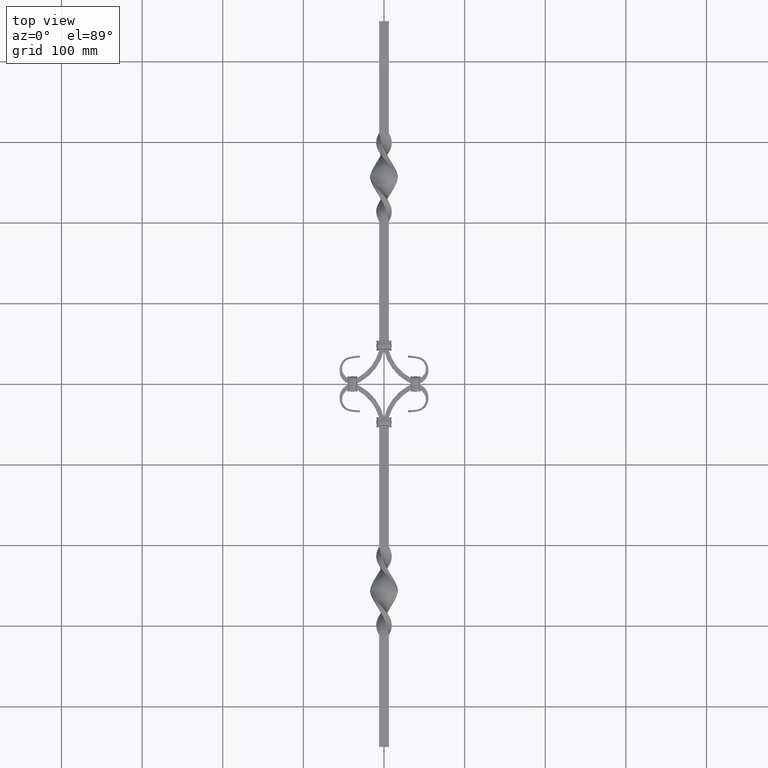
[diagram: clean part render]
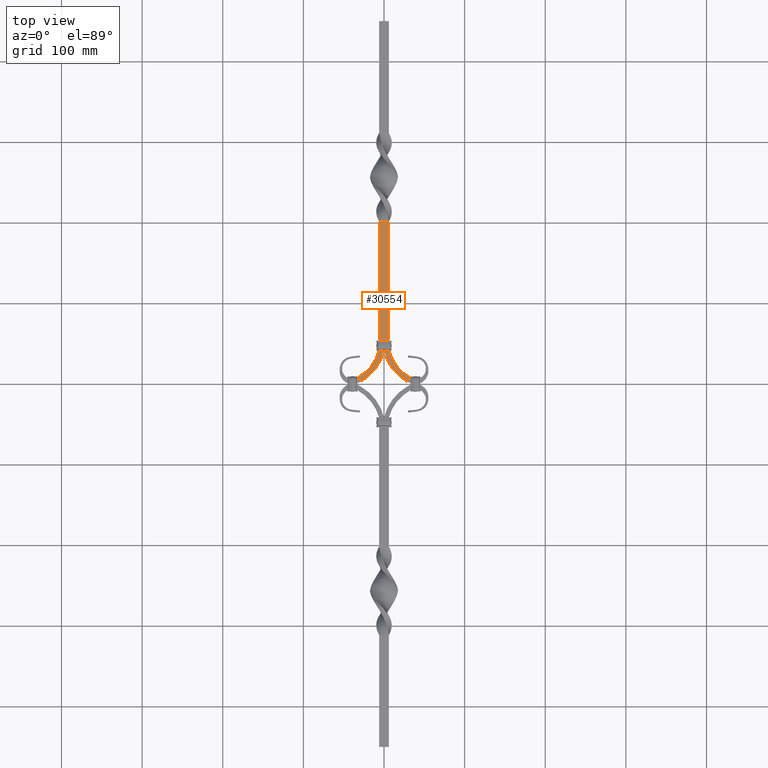
[diagram: same view with one face highlighted and labeled with its STEP entity id]
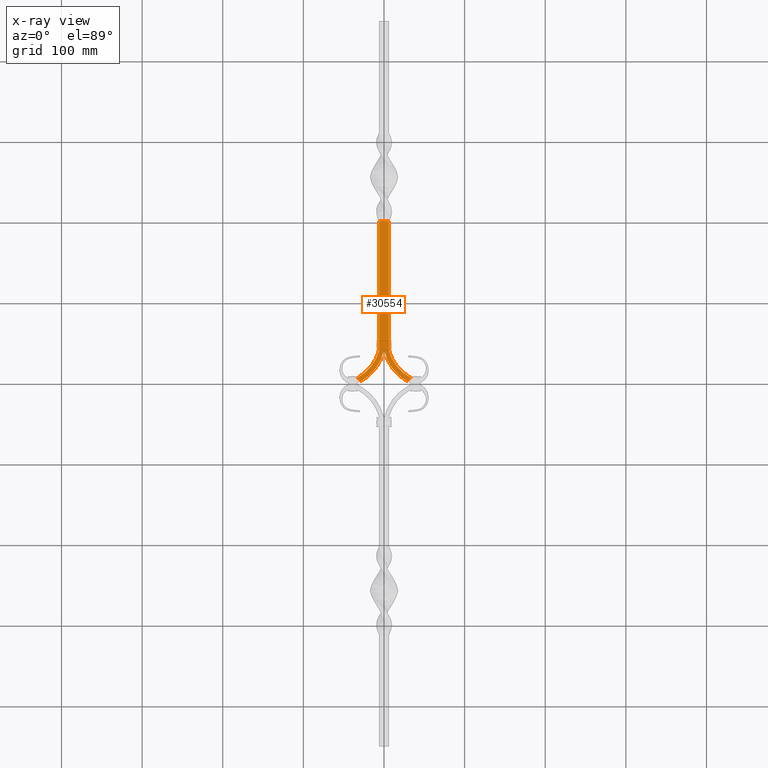
[diagram: x-ray of the same camera — body ghosted, the highlighted face saturated]
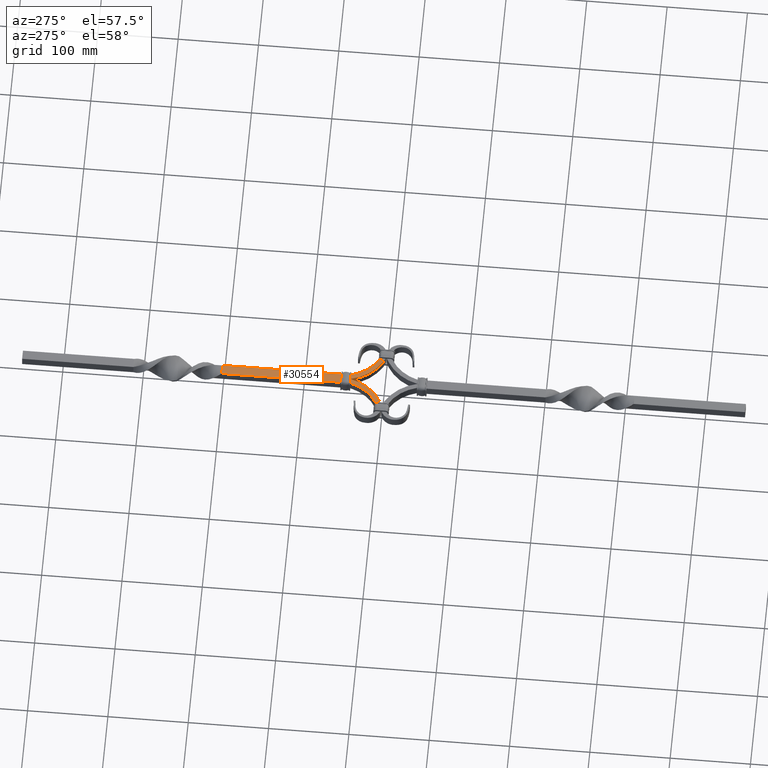
[diagram: same view with one face highlighted and labeled with its STEP entity id]
A machine part, top view. The second image highlights one B-rep face of the part: STEP entity #30554.
The next image is the same camera in x-ray: the body ghosted, the highlighted face saturated — about 0% of this face is hidden behind the body in this view.
A second angle (auxiliary view) of the same face is appended — the face is thin or edge-on in the first view.
In plain terms, the highlighted planar face has unit normal (-0, -0, -1).
Its self-contained STEP definition (entity closure, byte-faithful):
#179 = VERTEX_POINT ( 'NONE', #27076 ) ;
#478 = DIRECTION ( 'NONE',  ( -0.000000000000000000, -0.000000000000000000, -1.000000000000000000 ) ) ;
#809 = VERTEX_POINT ( 'NONE', #1776 ) ;
#1152 = CARTESIAN_POINT ( 'NONE',  ( -5.999999833333292010, 41.50000000000000000, 6.000000000000043521 ) ) ;
#1306 = VECTOR ( 'NONE', #19699, 1000.000000000000000 ) ;
#1404 = CARTESIAN_POINT ( 'NONE',  ( -32.78314722825023608, 7.582875072314094744, 6.000000000000043521 ) ) ;
#1441 = B_SPLINE_CURVE_WITH_KNOTS ( 'NONE', 3,
 ( #17561, #20033, #2916, #5411 ),
 .UNSPECIFIED., .F., .F.,
 ( 4, 4 ),
 ( 0.000000000000000000, 1.000000000000000000 ),
 .UNSPECIFIED. ) ;
#1625 = ORIENTED_EDGE ( 'NONE', *, *, #3759, .F. ) ;
#1776 = CARTESIAN_POINT ( 'NONE',  ( -28.66998436362908365, 3.283527302116791446, 5.999999917361111379 ) ) ;
#1881 = DIRECTION ( 'NONE',  ( -1.000000000000000000, -8.591735456650550102E-18, 6.910682532853900011E-15 ) ) ;
#2353 = DIRECTION ( 'NONE',  ( 0.000000000000000000, 0.000000000000000000, 1.000000000000000000 ) ) ;
#2505 = EDGE_CURVE ( 'NONE', #18834, #3188, #9484, .T. ) ;
#2864 = B_SPLINE_CURVE_WITH_KNOTS ( 'NONE', 3,
 ( #11423, #9062, #28710, #18811 ),
 .UNSPECIFIED., .F., .F.,
 ( 4, 4 ),
 ( 0.4958333472222151705, 0.5041666527777778350 ),
 .UNSPECIFIED. ) ;
#2916 = CARTESIAN_POINT ( 'NONE',  ( -5.999999999999958256, 94.83333333333338544, 6.000000000000023981 ) ) ;
#3121 = LINE ( 'NONE', #1404, #28432 ) ;
#3188 = VERTEX_POINT ( 'NONE', #10870 ) ;
#3759 = EDGE_CURVE ( 'NONE', #179, #809, #12509, .T. ) ;
#4164 = FACE_OUTER_BOUND ( 'NONE', #18968, .T. ) ;
#5142 = VERTEX_POINT ( 'NONE', #1152 ) ;
#5411 = CARTESIAN_POINT ( 'NONE',  ( -5.999999833333292010, 41.50000000000000000, 6.000000000000043521 ) ) ;
#5599 = CARTESIAN_POINT ( 'NONE',  ( 0.04999983333337934543, 41.50000000000000000, 5.999999917361111379 ) ) ;
#7958 = DIRECTION ( 'NONE',  ( -0.9715685761218874061, -0.2367583195845254507, 0.000000000000000000 ) ) ;
#8377 = VECTOR ( 'NONE', #22094, 999.9999999999998863 ) ;
#9062 = CARTESIAN_POINT ( 'NONE',  ( -0.01666661111112539492, 41.50000000000000000, 6.000000000000001776 ) ) ;
#9123 = AXIS2_PLACEMENT_3D ( 'NONE', #22419, #14886, #7958 ) ;
#9484 = CIRCLE ( 'NONE', #12220, 54.99999999999999289 ) ;
#9969 = ORIENTED_EDGE ( 'NONE', *, *, #14269, .T. ) ;
#10804 = EDGE_CURVE ( 'NONE', #5142, #25402, #15993, .T. ) ;
#10870 = CARTESIAN_POINT ( 'NONE',  ( 32.78314722825024319, 7.582875072314088527, 6.000000000000043521 ) ) ;
#11002 = DIRECTION ( 'NONE',  ( 0.6912878764069255721, -0.7225794571760277840, -1.388889616061434553E-08 ) ) ;
#11205 = LINE ( 'NONE', #24954, #1306 ) ;
#11423 = CARTESIAN_POINT ( 'NONE',  ( -0.04999983333337934543, 41.50000000000000000, 5.999999917361111379 ) ) ;
#12008 = DIRECTION ( 'NONE',  ( -0.9651857602519690049, -0.2615653803675643818, 0.000000000000000000 ) ) ;
#12220 = AXIS2_PLACEMENT_3D ( 'NONE', #21954, #2353, #12008 ) ;
#12509 = CIRCLE ( 'NONE', #19806, 60.76278943633926133 ) ;
#13493 = ORIENTED_EDGE ( 'NONE', *, *, #27003, .T. ) ;
#13779 = EDGE_CURVE ( 'NONE', #24350, #18834, #25818, .T. ) ;
#14269 = EDGE_CURVE ( 'NONE', #24350, #17121, #11205, .T. ) ;
#14741 = ORIENTED_EDGE ( 'NONE', *, *, #23830, .T. ) ;
#14886 = DIRECTION ( 'NONE',  ( 0.000000000000000000, 0.000000000000000000, 1.000000000000000000 ) ) ;
#15251 = ORIENTED_EDGE ( 'NONE', *, *, #30659, .F. ) ;
#15312 = ORIENTED_EDGE ( 'NONE', *, *, #19515, .T. ) ;
#15993 = CIRCLE ( 'NONE', #31770, 54.99999999999999289 ) ;
#16423 = PLANE ( 'NONE',  #28560 ) ;
#16781 = ORIENTED_EDGE ( 'NONE', *, *, #2505, .F. ) ;
#17121 = VERTEX_POINT ( 'NONE', #26841 ) ;
#17220 = ORIENTED_EDGE ( 'NONE', *, *, #19622, .T. ) ;
#17246 = DIRECTION ( 'NONE',  ( -0.000000000000000000, -0.000000000000000000, -1.000000000000000000 ) ) ;
#17541 = DIRECTION ( 'NONE',  ( 0.9651857602519690049, -0.2615653803675643818, 0.000000000000000000 ) ) ;
#17561 = CARTESIAN_POINT ( 'NONE',  ( -6.000229014795413818, 201.4998782681933278, 5.999999914508149068 ) ) ;
#17632 = CARTESIAN_POINT ( 'NONE',  ( 6.000000000000040856, 148.1666666666667993, 6.000000000000002665 ) ) ;
#18811 = CARTESIAN_POINT ( 'NONE',  ( 0.04999983333337934543, 41.50000000000000000, 5.999999917361111379 ) ) ;
#18834 = VERTEX_POINT ( 'NONE', #27935 ) ;
#18968 = EDGE_LOOP ( 'NONE', ( #17220, #27084, #14741, #1625, #13493, #15312, #15251, #16781, #29075, #9969 ) ) ;
#19059 = CARTESIAN_POINT ( 'NONE',  ( -32.78314722825024319, 7.582875072314088527, 6.000000000000043521 ) ) ;
#19515 = EDGE_CURVE ( 'NONE', #21499, #19623, #26993, .T. ) ;
#19605 = CARTESIAN_POINT ( 'NONE',  ( 32.78314722825023608, 7.582875072314094744, 6.000000000000043521 ) ) ;
#19622 = EDGE_CURVE ( 'NONE', #17121, #5142, #1441, .T. ) ;
#19623 = VERTEX_POINT ( 'NONE', #27438 ) ;
#19699 = DIRECTION ( 'NONE',  ( -1.000000000000000000, -8.591735456650550102E-18, 6.910682532853900011E-15 ) ) ;
#19806 = AXIS2_PLACEMENT_3D ( 'NONE', #29521, #17246, #24770 ) ;
#20033 = CARTESIAN_POINT ( 'NONE',  ( -5.999999999999958256, 148.1666666666667709, 6.000000000000006217 ) ) ;
#20357 = CARTESIAN_POINT ( 'NONE',  ( -59.08521664719157940, 55.88609592021603589, 6.000000000000043521 ) ) ;
#21499 = VERTEX_POINT ( 'NONE', #5599 ) ;
#21954 = CARTESIAN_POINT ( 'NONE',  ( 59.08521664719157940, 55.88609592021603589, 6.000000000000043521 ) ) ;
#22094 = DIRECTION ( 'NONE',  ( -0.6912878764069255721, -0.7225794571760277840, -1.388889616061434553E-08 ) ) ;
#22419 = CARTESIAN_POINT ( 'NONE',  ( 59.08521664719157940, 55.88609592021603589, 5.999999917361111379 ) ) ;
#22491 = CARTESIAN_POINT ( 'NONE',  ( 6.000000000000040856, 94.83333333333341386, 5.999999999999981348 ) ) ;
#23802 = CARTESIAN_POINT ( 'NONE',  ( 6.000005543560789967, 201.5000009166145105, 6.000000044937220167 ) ) ;
#23830 = EDGE_CURVE ( 'NONE', #25402, #809, #3121, .T. ) ;
#24350 = VERTEX_POINT ( 'NONE', #23802 ) ;
#24702 = CARTESIAN_POINT ( 'NONE',  ( 6.000005543560789967, 201.5000009166145105, 6.000000044937220167 ) ) ;
#24770 = DIRECTION ( 'NONE',  ( 0.9715685761218874061, -0.2367583195845254507, 0.000000000000000000 ) ) ;
#24954 = CARTESIAN_POINT ( 'NONE',  ( 6.000000000000039968, 201.5000000000002274, 5.999999999999959144 ) ) ;
#25402 = VERTEX_POINT ( 'NONE', #19059 ) ;
#25818 = B_SPLINE_CURVE_WITH_KNOTS ( 'NONE', 3,
 ( #24702, #17632, #22491, #29563 ),
 .UNSPECIFIED., .F., .F.,
 ( 4, 4 ),
 ( 0.000000000000000000, 1.000000000000000000 ),
 .UNSPECIFIED. ) ;
#26841 = CARTESIAN_POINT ( 'NONE',  ( -6.000229014795413818, 201.4998782681933278, 5.999999914508149068 ) ) ;
#26993 = CIRCLE ( 'NONE', #9123, 60.76278943633926133 ) ;
#27003 = EDGE_CURVE ( 'NONE', #179, #21499, #2864, .T. ) ;
#27076 = CARTESIAN_POINT ( 'NONE',  ( -0.04999983333337934543, 41.50000000000000000, 5.999999917361111379 ) ) ;
#27084 = ORIENTED_EDGE ( 'NONE', *, *, #10804, .T. ) ;
#27438 = CARTESIAN_POINT ( 'NONE',  ( 28.66998436362908365, 3.283527302116791446, 5.999999917361111379 ) ) ;
#27935 = CARTESIAN_POINT ( 'NONE',  ( 5.999999833333292010, 41.50000000000000000, 6.000000000000043521 ) ) ;
#28312 = LINE ( 'NONE', #19605, #8377 ) ;
#28432 = VECTOR ( 'NONE', #11002, 999.9999999999998863 ) ;
#28560 = AXIS2_PLACEMENT_3D ( 'NONE', #28787, #31344, #1881 ) ;
#28710 = CARTESIAN_POINT ( 'NONE',  ( 0.01666661111112526308, 41.50000000000000000, 6.000000000000001776 ) ) ;
#28787 = CARTESIAN_POINT ( 'NONE',  ( 6.000000000000039968, 201.5000000000000000, 5.999999999999959144 ) ) ;
#29075 = ORIENTED_EDGE ( 'NONE', *, *, #13779, .F. ) ;
#29521 = CARTESIAN_POINT ( 'NONE',  ( -59.08521664719157940, 55.88609592021603589, 5.999999917361111379 ) ) ;
#29563 = CARTESIAN_POINT ( 'NONE',  ( 5.999999833333292010, 41.50000000000000000, 6.000000000000043521 ) ) ;
#30554 = ADVANCED_FACE ( 'NONE', ( #4164 ), #16423, .F. ) ;
#30659 = EDGE_CURVE ( 'NONE', #3188, #19623, #28312, .T. ) ;
#31344 = DIRECTION ( 'NONE',  ( -6.910682532853900011E-15, -4.456787267672613305E-18, -1.000000000000000000 ) ) ;
#31770 = AXIS2_PLACEMENT_3D ( 'NONE', #20357, #478, #17541 ) ;